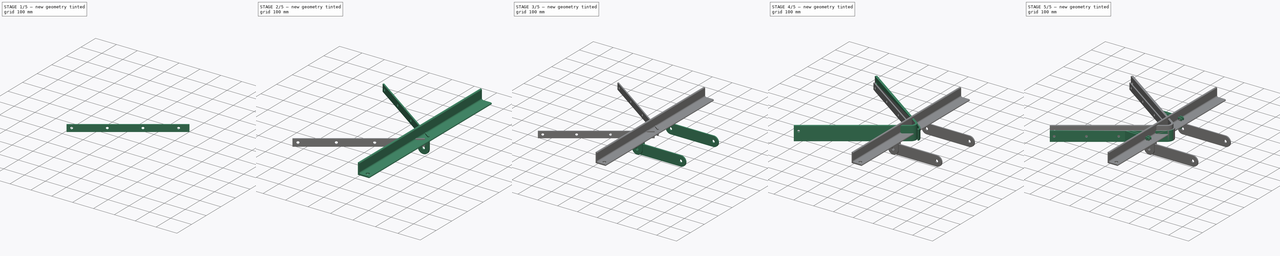
[diagram: build sequence overview — one tinted view per stage of 5, left to right]
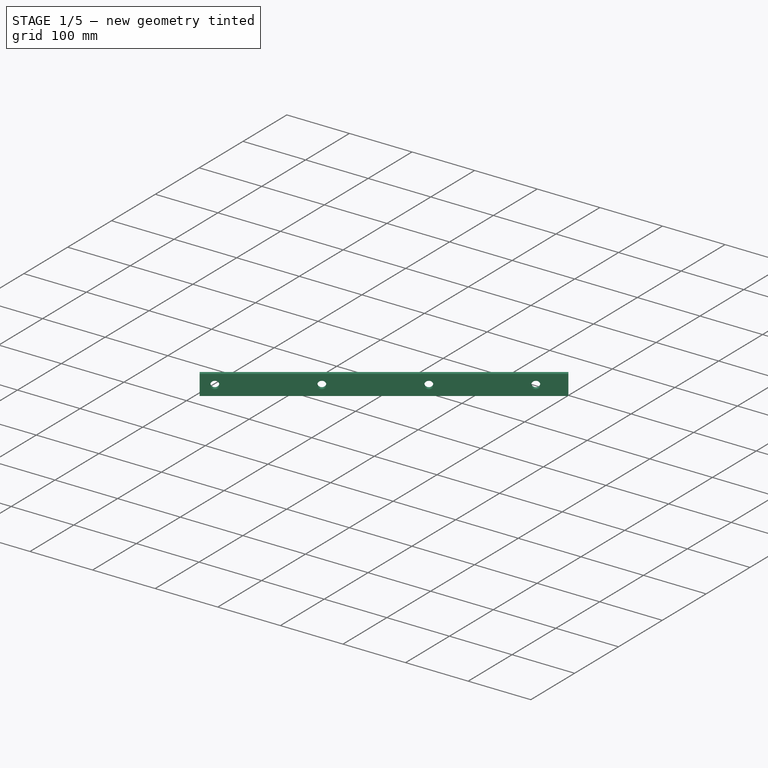
[diagram: stage 1 of 5 — iso view after this stage's code; geometry added in this stage tinted green]
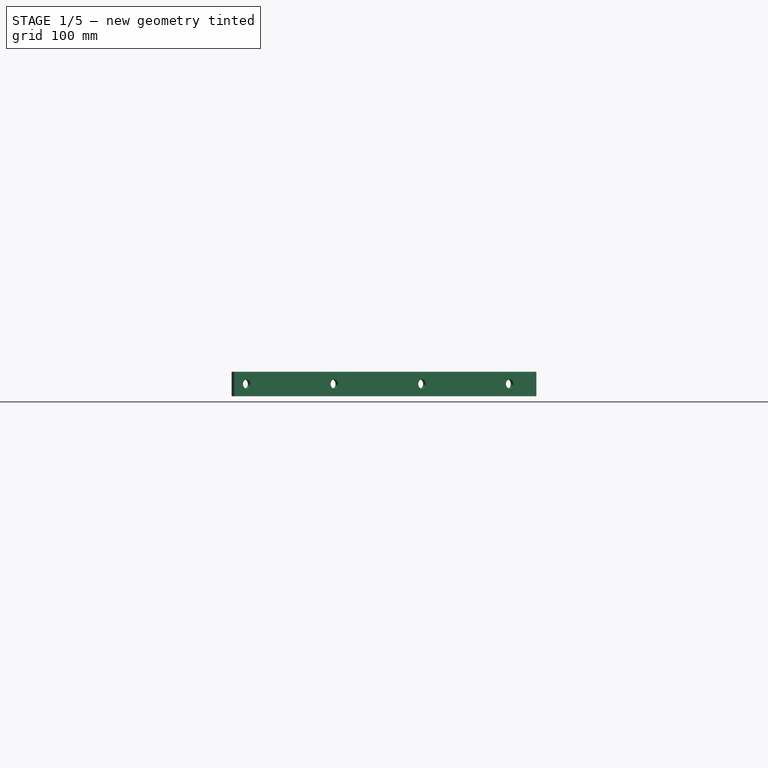
[diagram: stage 1 of 5 — front view after this stage's code; geometry added in this stage tinted green]
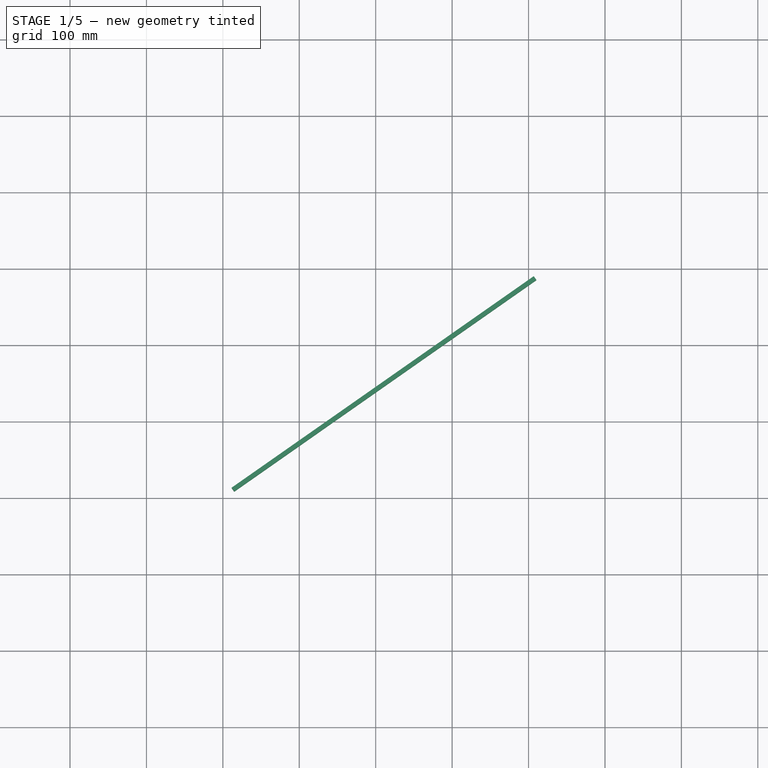
[diagram: stage 1 of 5 — top view after this stage's code; geometry added in this stage tinted green]
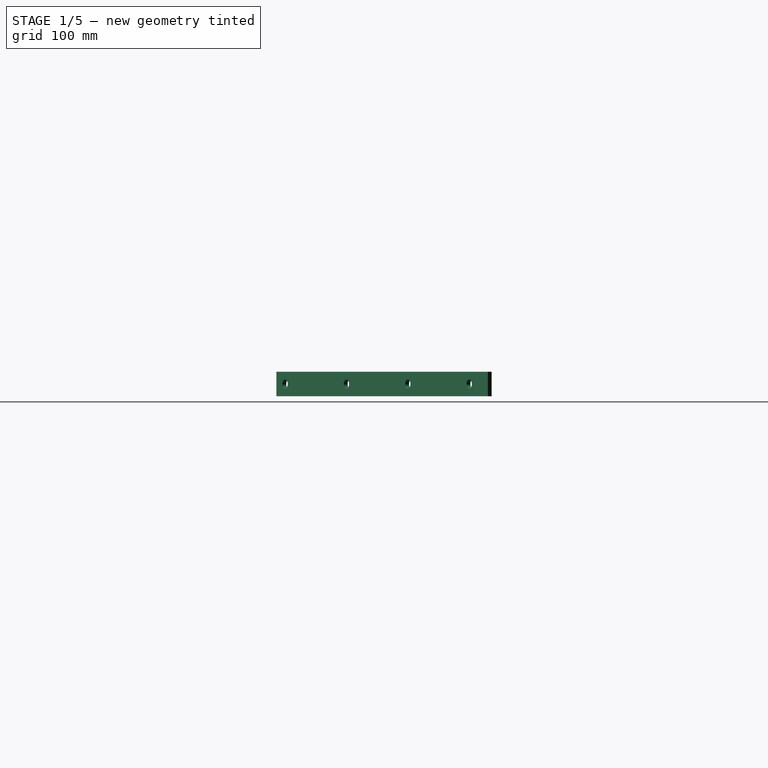
[diagram: stage 1 of 5 — right view after this stage's code; geometry added in this stage tinted green]
FCSTD DOCUMENT  (FreeCAD 1.0R39109 (Git))
Label: scraper
License: All rights reserved
objects: Sketcher::SketchObject×11, PartDesign::Pad×6, App::Part×6, PartDesign::Body×5, PartDesign::Pocket×4, PartDesign::LinearPattern×3, PartDesign::Mirrored×3, Part::FeaturePython×3, Part::Mirroring×2, Part::Compound×2, PartDesign::Chamfer×1, Part::MultiFuse×1, Part::Extrusion×1, Part::Cut×1, Spreadsheet::Sheet×1
note: 82 computed .brp shape members not serialized (recipe doc carries the construction recipe); baked Part::Feature solids carry a one-line shape summary decoded from their .brp

FEATURE [App::Part] Part005  label="suport"
  Group = -> [Clone,Body004,Compound,Clone001,Sketch012,AngleSteel,Extrude,Cut]
  Origin = -> Origin010
  Placement = pos=(175.034,0,98.5343) rot=(0,0,1;0rad)
  expr: .Placement.Base.x = 215 * cos(Spreadsheet.angle) - 27
  expr: .Placement.Base.z = 25 + 215 * sin(Spreadsheet.angle)
FEATURE [Spreadsheet::Sheet] Spreadsheet
  cells = A1='beltWidth; B1(B0)=500; A2='angle; B2(angle)=20
FEATURE [Sketcher::SketchObject] Sketch013
  ArcFitTolerance = 1e-06
  AttachmentSupport = -> [XY_Plane012]
  FullyConstrained = false
  MakeInternals = false
  MapMode = 5
  expr: Constraints[10] = 55
  expr: Constraints[13] = (Spreadsheet.B0 + 100) / 2 - 8.5
  sketch-geometry (5):
    g0: LineSegment StartX=-385.114 StartY=291.5 StartZ=0 EndX=10.2615 EndY=14.6549 EndZ=0
    g1: LineSegment StartX=10.2615 StartY=14.6549 StartZ=0 EndX=6.82002 EndY=9.74 EndZ=0
    g2: LineSegment StartX=6.82002 StartY=9.74 StartZ=0 EndX=-388.556 EndY=286.585 EndZ=0
    g3: LineSegment StartX=-388.556 StartY=286.585 StartZ=0 EndX=-385.114 EndY=291.5 EndZ=0
    g4: LineSegment [constr] StartX=0 StartY=0 StartZ=0 EndX=9.3717 EndY=13.3842 EndZ=0
  constraints (14):
    c: Coincident(g0,g1)
    c: Coincident(g1,g2)
    c: Coincident(g2,g3)
    c: Coincident(g3,g0)
    c: Perpendicular(g3,g0)
    c: Parallel(g2,g0)
    c: Distance(g3,g3) = 6
    c: Angle(g2,g-1) = 0.610865
    c: Perpendicular(g0,g1)
    c: Coincident(g4,g-1)
    c: Angle(g-1,g4) = 0.959931
    c: PointOnObject(g1,g4)
    c: DistanceY(g-1,g1) = 9.74
    c: DistanceY(g-1,g0) = 291.5
FEATURE [PartDesign::Pad] Pad006
  Direction = (0,0,1)
  Length = 32
  Length2 = 10
  Profile = -> Sketch013
  ReferenceAxis = -> Sketch013 [N_Axis]
  Refine = true
  Suppressed = false
  Type = 0
FEATURE [Sketcher::SketchObject] Sketch014
  ArcFitTolerance = 1e-06
  AttachmentSupport = -> [Pad006]
  ExternalGeometry = -> [Pad006]
  FullyConstrained = true
  MakeInternals = false
  MapMode = 5
  Placement = pos=(6.82002,9.74,0) rot=(0.913318,-0.287968,-0.287968;1.66134rad)
  sketch-geometry (1):
    g0: Circle CenterX=-462.665 CenterY=16 CenterZ=0 NormalX=0 NormalY=0 NormalZ=1 AngleXU=0 Radius=6
  constraints (3):
    c: Diameter(g0) = 12
    c: Distance(g0,g-3) = 20
    c: DistanceY(g0,g-3) = 16
FEATURE [PartDesign::Pocket] Pocket004
  BaseFeature = -> Pad006
  Direction = (0.573576,0.819152,0)
  Length = 5
  Length2 = 5
  Profile = -> Sketch014
  ReferenceAxis = -> Sketch014 [N_Axis]
  Refine = true
  Suppressed = false
  Type = 1
FEATURE [PartDesign::LinearPattern] LinearPattern002
  BaseFeature = -> Pocket004
  Direction = -> Sketch014 [H_Axis]
  Length = 420
  Mode = 0
  Occurrences = 4
  Offset = 140
  Originals = -> [Pocket004]
  Refine = true
  Suppressed = false
  TransformMode = 0
  expr: Length = Spreadsheet.B0 - 80
FEATURE [PartDesign::Mirrored] Mirrored002
  BaseFeature = -> LinearPattern002
  MirrorPlane = -> XZ_Plane012
  Refine = true
  Suppressed = false
  TransformMode = 1
FEATURE [PartDesign::Body] Body005  label="Body006"
  AllowCompound = false
  Group = -> [Sketch013,Pad006,Sketch014,Pocket004,LinearPattern002,Mirrored002]
  Origin = -> Origin012
  Placement = pos=(0,0,9) rot=(0,0,1;0rad)
  Tip = -> Mirrored002
FEATURE [App::Part] Part007  label="clampingPlate"
  Group = -> [Body005]
  Origin = -> Origin013
FEATURE [Part::Mirroring] Mirror  label="clampingPlate (mirrored)"
  Base = (-500,0,0)
  Normal = (0,-1,0)
  Source = -> Part007
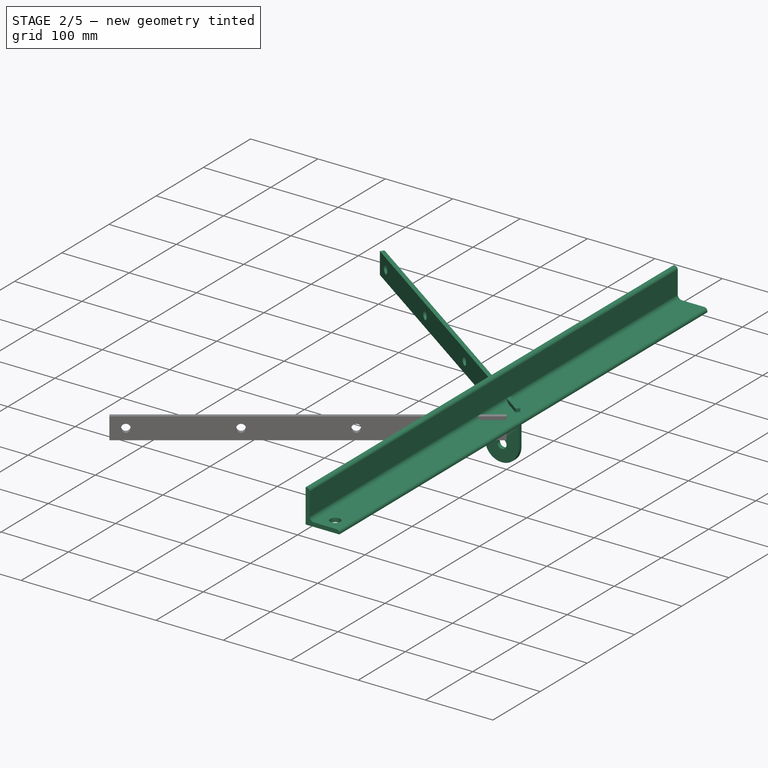
[diagram: stage 2 of 5 — iso view after this stage's code; geometry added in this stage tinted green]
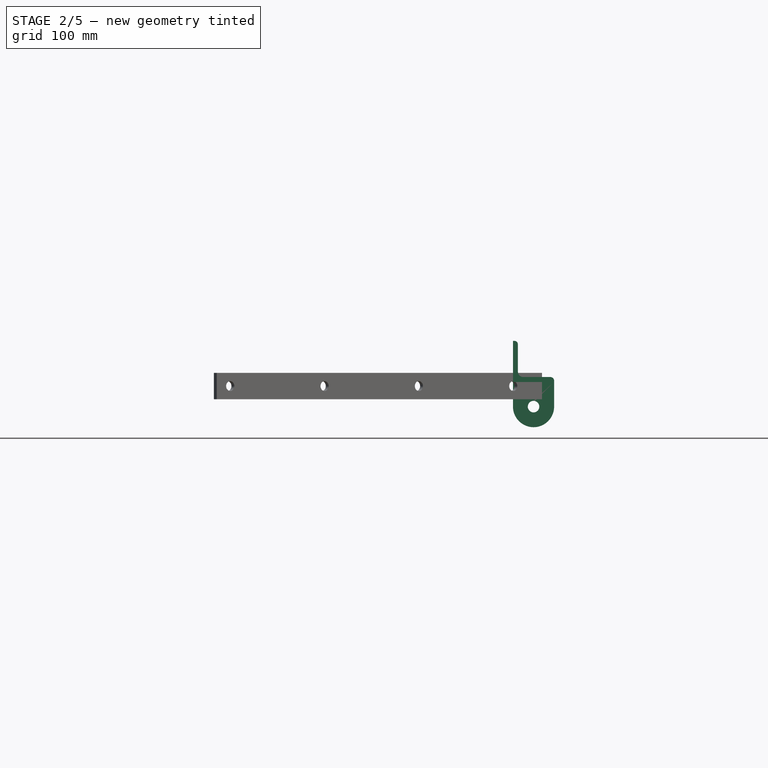
[diagram: stage 2 of 5 — front view after this stage's code; geometry added in this stage tinted green]
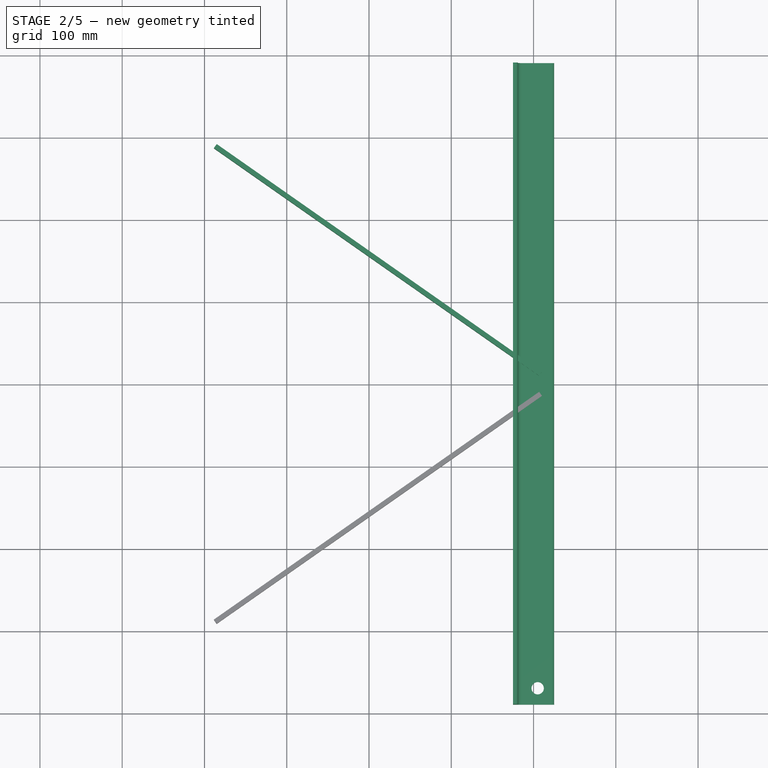
[diagram: stage 2 of 5 — top view after this stage's code; geometry added in this stage tinted green]
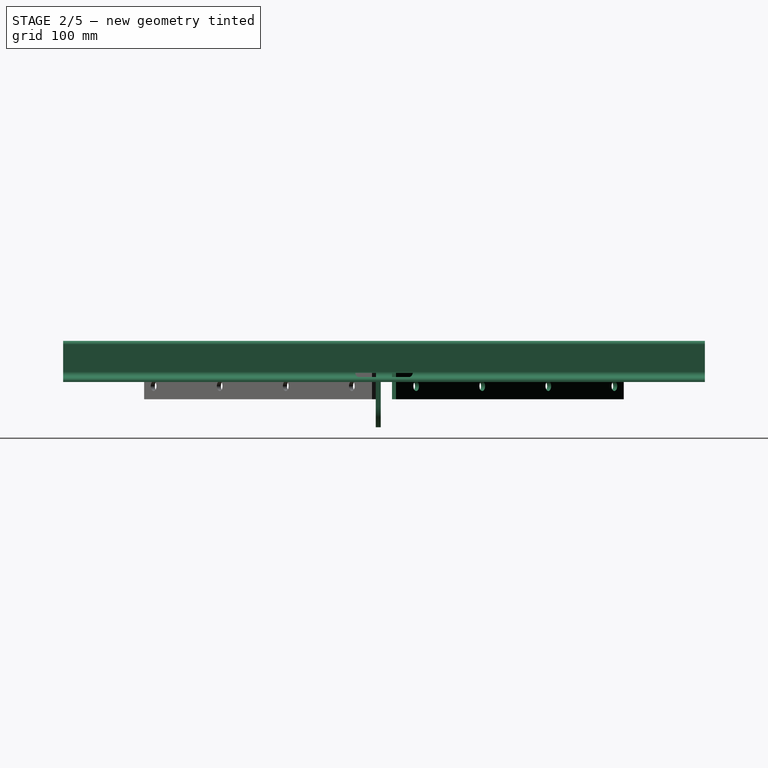
[diagram: stage 2 of 5 — right view after this stage's code; geometry added in this stage tinted green]
FEATURE [App::Part] Part004  label="LinkPlate"
  Group = -> [Mirror001,Body003,Fusion001]
  Origin = -> Origin008
  Placement = pos=(-27,0,25) rot=(0,1,0;-0.349066rad)
  expr: .Placement.Base.z = 25
  expr: .Placement.Rotation.Angle = -Spreadsheet.angle
FEATURE [Sketcher::SketchObject] Sketch011
  ArcFitTolerance = 1e-06
  AttachmentSupport = -> [XZ_Plane009]
  FullyConstrained = true
  MakeInternals = false
  MapMode = 5
  Placement = pos=(0,0,0) rot=(1,0,0;1.5708rad)
  sketch-geometry (5):
    g0: Circle CenterX=0 CenterY=0 CenterZ=0 NormalX=0 NormalY=0 NormalZ=1 AngleXU=0 Radius=7
    g1: ArcOfCircle CenterX=0 CenterY=0 CenterZ=0 NormalX=0 NormalY=0 NormalZ=1 AngleXU=0 Radius=25 StartAngle=3.14159 EndAngle=6.28319
    g2: LineSegment StartX=-25 StartY=3.1e-15 StartZ=0 EndX=-25 EndY=30 EndZ=0
    g3: LineSegment StartX=-25 StartY=30 StartZ=0 EndX=25 EndY=30 EndZ=0
    g4: LineSegment StartX=25 StartY=30 StartZ=0 EndX=25 EndY=-7.1e-15 EndZ=0
  constraints (13):
    c: Coincident(g0,g-1)
    c: Coincident(g1,g0)
    c: PointOnObject(g1,g-1)
    c: PointOnObject(g1,g-1)
    c: Tangent(g1,g2) = 1.5708
    c: Coincident(g2,g3)
    c: Horizontal(g3)
    c: Coincident(g3,g4)
    c: Coincident(g4,g1)
    c: Vertical(g4)
    c: DistanceX(g3,g3) = 50
    c: DistanceY(g-1,g2) = 30
    c: Diameter(g0) = 14
FEATURE [PartDesign::Pad] Pad005
  Direction = (0,-1,2e-16)
  Length = 6
  Length2 = 10
  Midplane = true
  Placement = pos=(0,0,0) rot=(1,0,0;1.5708rad)
  Profile = -> Sketch011
  ReferenceAxis = -> Sketch011 [N_Axis]
  Refine = true
  Suppressed = false
  Type = 0
FEATURE [PartDesign::Body] Body004
  AllowCompound = false
  Group = -> [Sketch011,Pad005]
  Origin = -> Origin009
  Placement = pos=(0,7,0) rot=(0,0,1;0rad)
  Tip = -> Pad005
FEATURE [Part::FeaturePython] Clone  label="Body005"  # Draft clone (typed FeaturePython)
  AttacherType = Attacher::AttachEngine3D
  Fuse = false
  Objects = -> [Body004]
  Placement = pos=(0,-7,0) rot=(0,0,1;0rad)
  Scale = (1,1,1)
FEATURE [Part::FeaturePython] AngleSteel  # WARN: FeaturePython — macro-defined, semantics opaque (R4)
  A = 50
  B = 50
  L = 780
  Placement = pos=(0,-390,55) rot=(1,0,0;4.71239rad)
  Solid = true
  g0 = 7.85
  mass = 3.45567
  size = 7
  standard = SS_Equal
  t = 6
  type = 00_Angle
  expr: .Placement.Base.y = -(Spreadsheet.B0 + 280) / 2
  expr: L = Spreadsheet.B0 + 280
FEATURE [Sketcher::SketchObject] Sketch012
  ArcFitTolerance = 1e-06
  AttachmentSupport = -> [AngleSteel]
  ExternalGeometry = -> [AngleSteel]
  FullyConstrained = true
  MakeInternals = false
  MapMode = 5
  Placement = pos=(0,-390,36) rot=(0,0,1;0rad)
  sketch-geometry (2):
    g0: Circle CenterX=5 CenterY=800 CenterZ=0 NormalX=0 NormalY=0 NormalZ=1 AngleXU=0 Radius=7.5
    g1: Circle CenterX=5 CenterY=20 CenterZ=0 NormalX=0 NormalY=0 NormalZ=1 AngleXU=0 Radius=7.5
  constraints (6):
    c: Diameter(g0) = 15
    c: Distance(g0,g-3) = 20
    c: Distance(g0,g-4) = 30
    c: Diameter(g1) = 15
    c: DistanceY(g-1,g1) = 20
    c: DistanceX(g-4,g1) = 30
FEATURE [Part::Extrusion] Extrude
  Base = -> Sketch012
  Dir = (0,0,1)
  DirMode = 2
  FaceMakerClass = Part::FaceMakerBullseye
  FaceMakerMode = 3
  LengthFwd = 10
  LengthRev = 0
  Reversed = true
  Solid = true
  Symmetric = false
FEATURE [Part::Cut] Cut
  Base = -> AngleSteel
  Refine = true
  Tool = -> Extrude
FEATURE [Part::Compound] Compound001  label="Compound002"
  Links = -> [Mirror,Part007]
FEATURE [App::Part] Part006  label="scraper"
  Group = -> [Part,Part001,Part004,Part005,Spreadsheet,Part007,Mirror,Compound001]
  Origin = -> Origin011
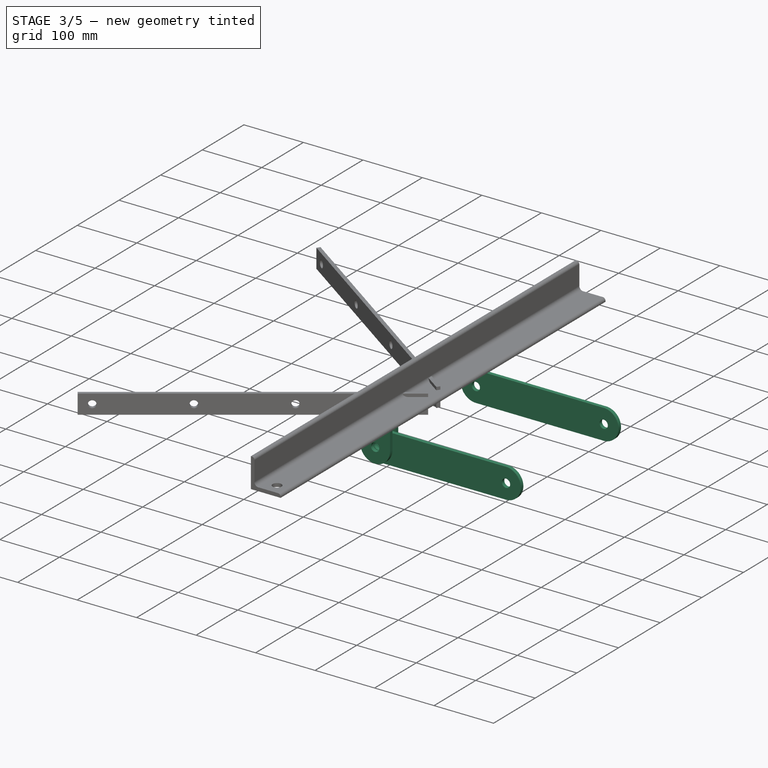
[diagram: stage 3 of 5 — iso view after this stage's code; geometry added in this stage tinted green]
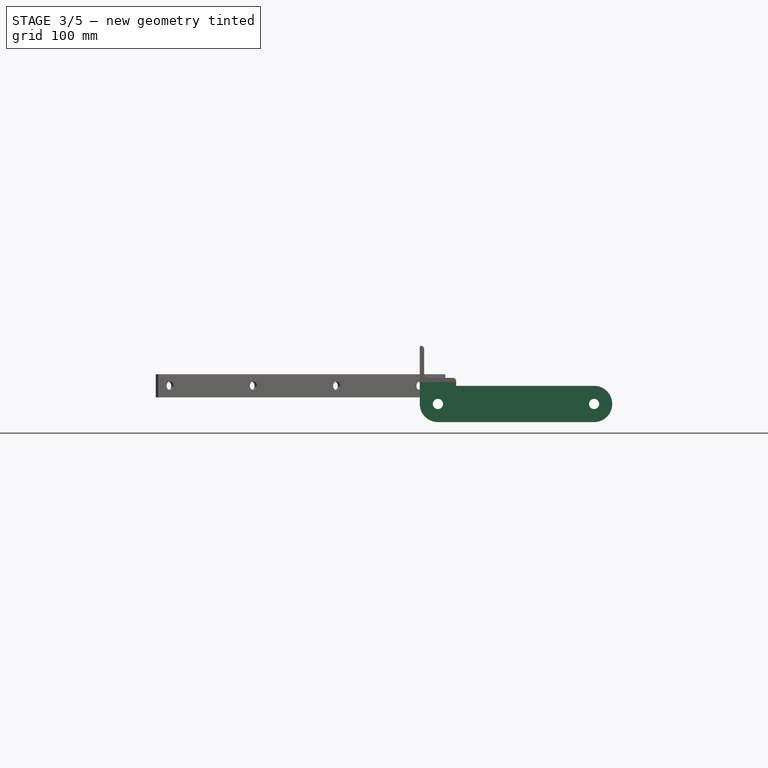
[diagram: stage 3 of 5 — front view after this stage's code; geometry added in this stage tinted green]
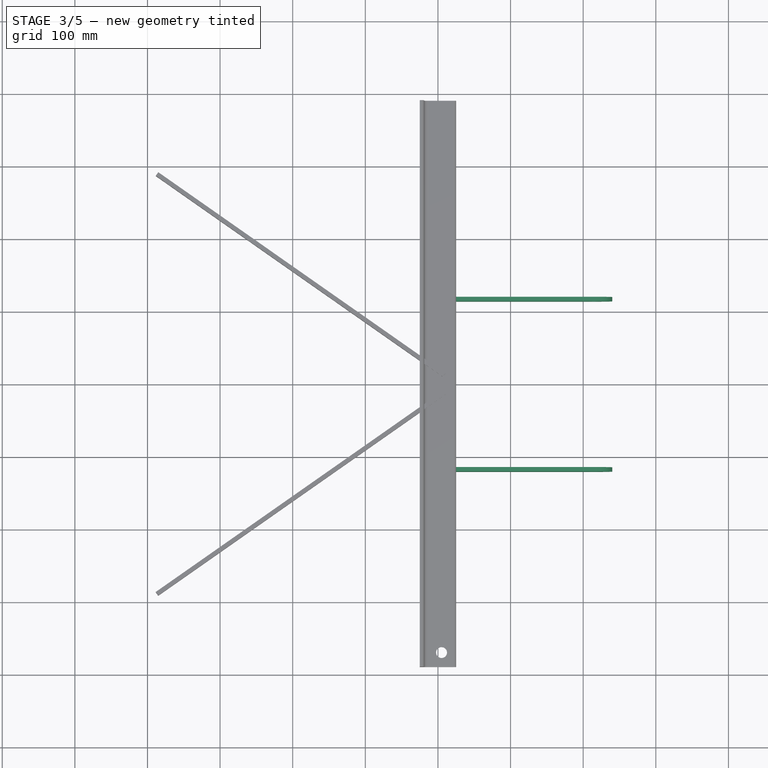
[diagram: stage 3 of 5 — top view after this stage's code; geometry added in this stage tinted green]
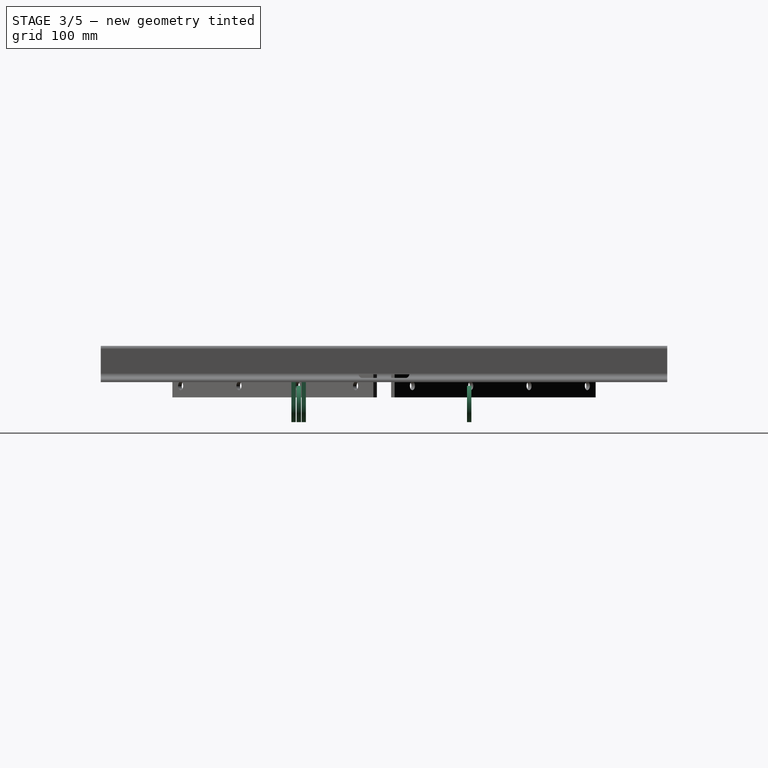
[diagram: stage 3 of 5 — right view after this stage's code; geometry added in this stage tinted green]
FEATURE [PartDesign::Body] Body001
  AllowCompound = false
  Group = -> [Sketch004,Pad002,Sketch006,Pocket002,Sketch007,Pocket003,LinearPattern001,Mirrored001]
  Origin = -> Origin002
  Placement = pos=(0,0,-20) rot=(0,0,1;0rad)
  Tip = -> Mirrored001
FEATURE [App::Part] Part001  label="rubberSheet"
  Group = -> [Body001]
  Origin = -> Origin003
FEATURE [Sketcher::SketchObject] Sketch010
  ArcFitTolerance = 1e-06
  AttachmentSupport = -> [XZ_Plane007]
  FullyConstrained = true
  MakeInternals = false
  MapMode = 5
  Placement = pos=(0,0,0) rot=(1,0,0;1.5708rad)
  sketch-geometry (6):
    g0: LineSegment StartX=-4.29e-14 StartY=25 StartZ=0 EndX=215 EndY=25 EndZ=0
    g1: ArcOfCircle CenterX=215 CenterY=0 CenterZ=0 NormalX=0 NormalY=0 NormalZ=1 AngleXU=0 Radius=25 StartAngle=4.71239 EndAngle=7.85398
    g2: LineSegment StartX=215 StartY=-25 StartZ=0 EndX=2.84e-14 EndY=-25 EndZ=0
    g3: ArcOfCircle CenterX=0 CenterY=0 CenterZ=0 NormalX=0 NormalY=0 NormalZ=1 AngleXU=0 Radius=25 StartAngle=1.5708 EndAngle=4.71239
    g4: Circle CenterX=0 CenterY=0 CenterZ=0 NormalX=0 NormalY=0 NormalZ=1 AngleXU=0 Radius=7
    g5: Circle CenterX=215 CenterY=0 CenterZ=0 NormalX=0 NormalY=0 NormalZ=1 AngleXU=0 Radius=7
  constraints (13):
    c: PointOnObject(g0,g-2)
    c: Tangent(g0,g1) = 1.5708
    c: PointOnObject(g2,g-2)
    c: Tangent(g2,g3) = 1.5708
    c: Tangent(g1,g2) = 1.5708
    c: Tangent(g3,g0) = 1.5708
    c: Coincident(g3,g-1)
    c: DistanceX(g0,g0) = 215
    c: Distance(g0,g2) = 50
    c: Coincident(g4,g3)
    c: Coincident(g5,g1)
    c: Diameter(g4) = 14
    c: Diameter(g5) = 14
FEATURE [PartDesign::Pad] Pad004
  Direction = (0,-1,2e-16)
  Length = 6
  Length2 = 10
  Placement = pos=(0,0,0) rot=(1,0,0;1.5708rad)
  Profile = -> Sketch010
  ReferenceAxis = -> Sketch010 [N_Axis]
  Refine = true
  Suppressed = false
  Type = 0
FEATURE [PartDesign::Body] Body003
  AllowCompound = false
  Group = -> [Sketch010,Pad004]
  Origin = -> Origin007
  Placement = pos=(0,-114.25,0) rot=(0,0,1;0rad)
  Tip = -> Pad004
FEATURE [Part::Mirroring] Mirror001  label="Body003 (mirrored)"
  Base = (-500,0,0)
  Normal = (0,-1,0)
  Source = -> Body003
FEATURE [Part::MultiFuse] Fusion001  label="linkPlate"
  Refine = true
  Shapes = -> [Mirror001,Body003]
FEATURE [Part::Compound] Compound
  Links = -> [Body004,Clone]
  Placement = pos=(0,117.5,0) rot=(0,0,1;0rad)
FEATURE [Part::FeaturePython] Clone001  label="Compound001"  # Draft clone (typed FeaturePython)
  AttacherType = Attacher::AttachEngine3D
  Fuse = false
  Objects = -> [Compound]
  Placement = pos=(0,-117.5,0) rot=(0,0,1;0rad)
  Scale = (1,1,1)
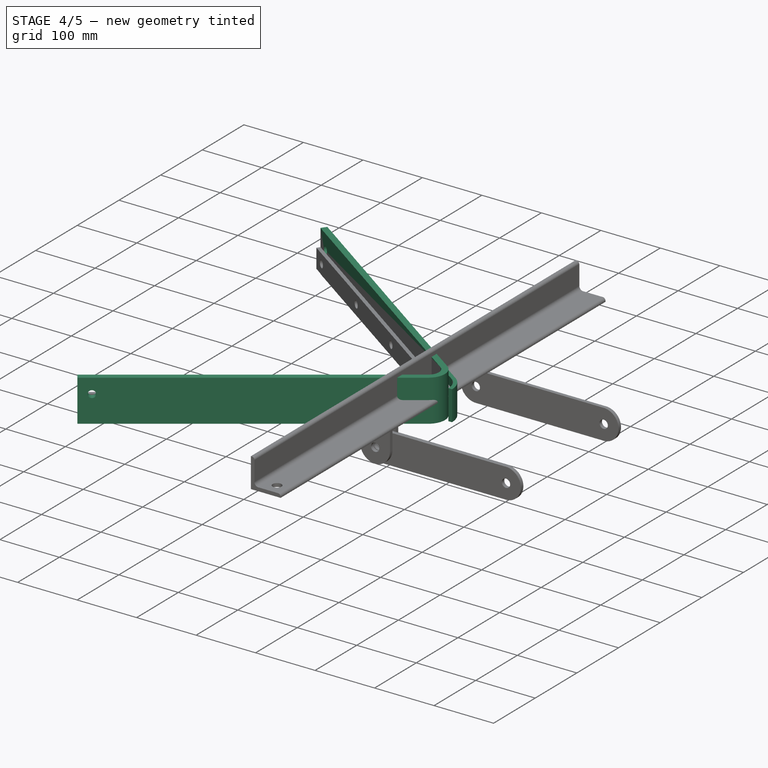
[diagram: stage 4 of 5 — iso view after this stage's code; geometry added in this stage tinted green]
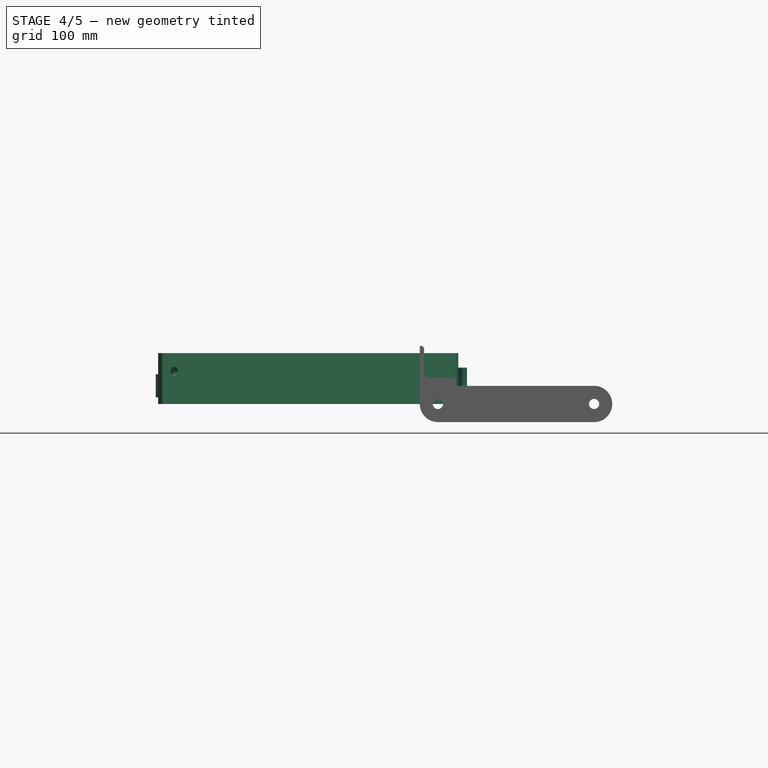
[diagram: stage 4 of 5 — front view after this stage's code; geometry added in this stage tinted green]
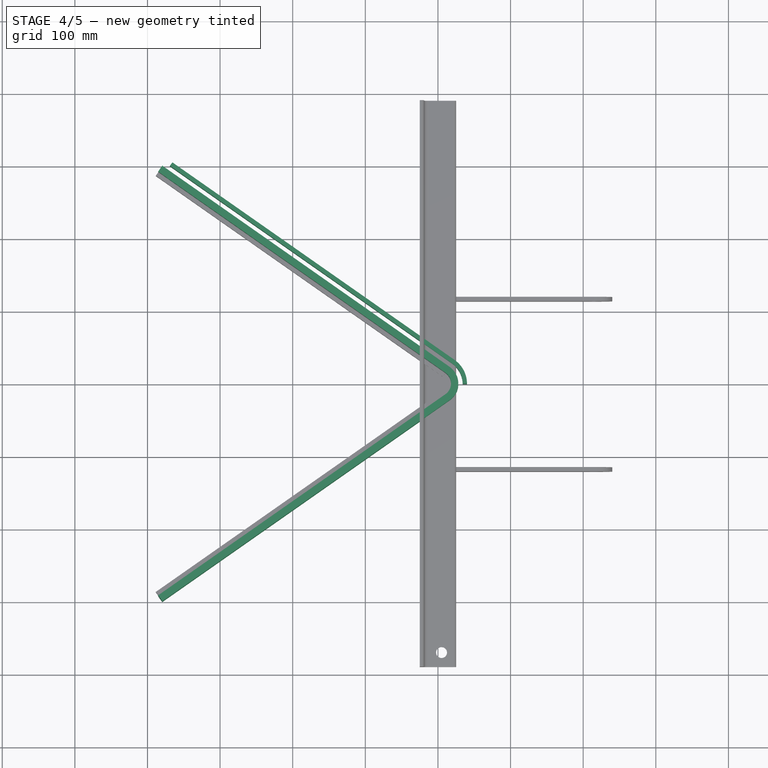
[diagram: stage 4 of 5 — top view after this stage's code; geometry added in this stage tinted green]
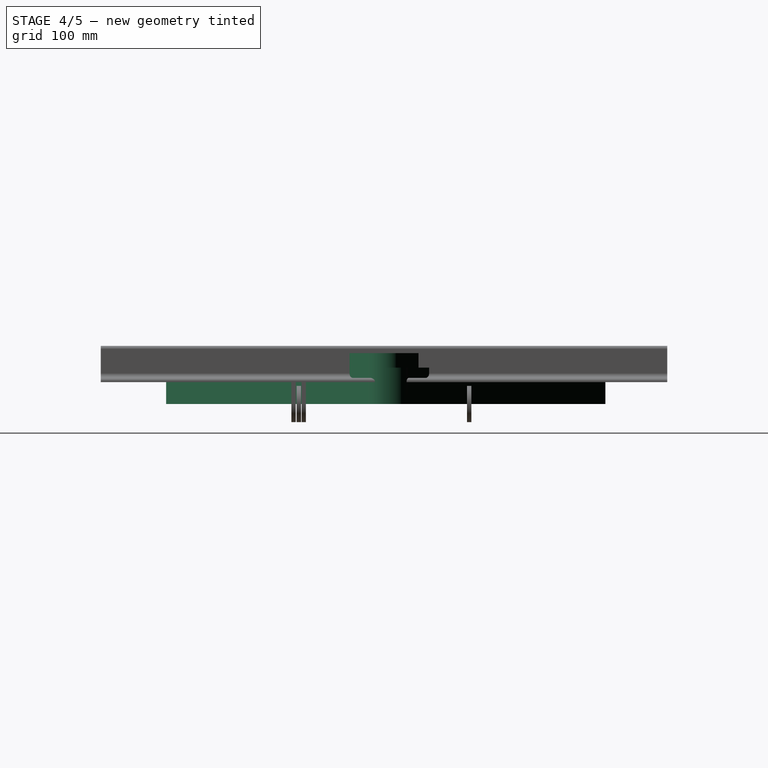
[diagram: stage 4 of 5 — right view after this stage's code; geometry added in this stage tinted green]
FEATURE [Sketcher::SketchObject] Sketch
  ArcFitTolerance = 1e-06
  AttachmentSupport = -> [XY_Plane]
  FullyConstrained = true
  MakeInternals = false
  MapMode = 5
  expr: Constraints[15] = (Spreadsheet.B0 + 100) / 2
  sketch-geometry (6):
    g0: LineSegment StartX=-369.167 StartY=300 StartZ=0 EndX=19.5016 EndY=27.8512 EndZ=0
    g1: ArcOfCircle CenterX=0 CenterY=0 CenterZ=0 NormalX=0 NormalY=0 NormalZ=1 AngleXU=0 Radius=34 StartAngle=0 EndAngle=0.959931
    g2: ArcOfCircle CenterX=0 CenterY=0 CenterZ=0 NormalX=0 NormalY=0 NormalZ=1 AngleXU=0 Radius=40 StartAngle=0 EndAngle=0.959931
    g3: LineSegment StartX=22.9431 StartY=32.7661 StartZ=0 EndX=-365.726 EndY=304.915 EndZ=0
    g4: LineSegment StartX=-365.726 StartY=304.915 StartZ=0 EndX=-369.167 EndY=300 EndZ=0
    g5: LineSegment StartX=40 StartY=0 StartZ=0 EndX=34 EndY=0 EndZ=0
  constraints (16):
    c: Tangent(g0,g1) = 1.5708
    c: Coincident(g3,g4)
    c: Coincident(g4,g0)
    c: Coincident(g2,g1)
    c: Coincident(g2,g-1)
    c: Tangent(g2,g3) = -1.5708
    c: Perpendicular(g4,g3)
    c: Parallel(g0,g3)
    c: Radius(g1) = 34
    c: Horizontal(g5)
    c: PointOnObject(g5,g-1)
    c: Coincident(g1,g5)
    c: Coincident(g2,g5)
    c: Angle(g3,g-1) = 0.610865
    c: Distance(g4,g4) = 6
    c: DistanceY(g-1,g0) = 300
FEATURE [PartDesign::Pad] Pad
  Direction = (0,0,1)
  Length = 50
  Length2 = 10
  Profile = -> Sketch
  ReferenceAxis = -> Sketch [N_Axis]
  Refine = true
  Suppressed = false
  Type = 0
FEATURE [PartDesign::Body] Body
  AllowCompound = false
  Group = -> [Sketch,Pad,Sketch001,Pad001,Chamfer,Sketch002,Pocket,LinearPattern,Mirrored]
  Origin = -> Origin
  Tip = -> Mirrored
FEATURE [App::Part] Part  label="scraperBody"
  Group = -> [Body]
  Origin = -> Origin001
FEATURE [Sketcher::SketchObject] Sketch004
  ArcFitTolerance = 1e-06
  AttachmentSupport = -> [XY_Plane002]
  FullyConstrained = true
  MakeInternals = false
  MapMode = 5
  expr: Constraints[15] = (Spreadsheet.B0 + 100) / 2
  sketch-geometry (6):
    g0: LineSegment StartX=-379.628 StartY=300 StartZ=0 EndX=16.0601 EndY=22.9363 EndZ=0
    g1: ArcOfCircle CenterX=0 CenterY=0 CenterZ=0 NormalX=0 NormalY=0 NormalZ=1 AngleXU=0 Radius=28 StartAngle=0 EndAngle=0.959931
    g2: ArcOfCircle CenterX=0 CenterY=0 CenterZ=0 NormalX=0 NormalY=0 NormalZ=1 AngleXU=0 Radius=18 StartAngle=-6.22e-14 EndAngle=0.959931
    g3: LineSegment StartX=10.3244 StartY=14.7447 StartZ=0 EndX=-385.364 EndY=291.808 EndZ=0
    g4: LineSegment StartX=-385.364 StartY=291.808 StartZ=0 EndX=-379.628 EndY=300 EndZ=0
    g5: LineSegment StartX=18 StartY=0 StartZ=0 EndX=28 EndY=0 EndZ=0
  constraints (16):
    c: Tangent(g0,g1) = 1.5708
    c: Coincident(g3,g4)
    c: Coincident(g4,g0)
    c: Coincident(g2,g1)
    c: Coincident(g2,g-1)
    c: Tangent(g2,g3) = -1.5708
    c: Perpendicular(g4,g3)
    c: Parallel(g0,g3)
    c: Horizontal(g5)
    c: PointOnObject(g5,g-1)
    c: Coincident(g1,g5)
    c: Coincident(g2,g5)
    c: Angle(g3,g-1) = 0.610865
    c: Distance(g4,g4) = 10
    c: Radius(g1) = 28
    c: DistanceY(g-1,g0) = 300
FEATURE [PartDesign::Pad] Pad002
  Direction = (0,0,1)
  Length = 70
  Length2 = 10
  Profile = -> Sketch004
  ReferenceAxis = -> Sketch004 [N_Axis]
  Refine = true
  Suppressed = false
  Type = 0
FEATURE [Sketcher::SketchObject] Sketch006
  ArcFitTolerance = 1e-06
  FullyConstrained = false
  MakeInternals = false
  MapMode = 5
  Placement = pos=(0,126.75,0) rot=(0,0.707107,0.707107;3.14159rad)
  sketch-geometry (1):
    g0: Circle CenterX=26.7406 CenterY=25.2413 CenterZ=0 NormalX=0 NormalY=0 NormalZ=1 AngleXU=0 Radius=6
  constraints (2):
    c: Diameter(g0) = 12
    c: Distance(g0,g-3) = 25
FEATURE [PartDesign::Pocket] Pocket002
  BaseFeature = -> Pad002
  Direction = (-1e-16,-1,2e-16)
  Length = 30
  Length2 = 5
  Profile = -> Sketch006
  ReferenceAxis = -> Sketch006 [N_Axis]
  Refine = true
  Suppressed = false
  Type = 0
FEATURE [Sketcher::SketchObject] Sketch007
  ArcFitTolerance = 1e-06
  AttachmentSupport = -> [Pocket002]
  ExternalGeometry = -> [Pocket002]
  FullyConstrained = true
  MakeInternals = false
  MapMode = 5
  Placement = pos=(10.3244,14.7447,0) rot=(0.913318,-0.287968,-0.287968;1.66134rad)
  sketch-geometry (1):
    g0: Circle CenterX=-463.046 CenterY=45 CenterZ=0 NormalX=0 NormalY=0 NormalZ=1 AngleXU=0 Radius=6
  constraints (3):
    c: DistanceY(g-1,g0) = 45
    c: Diameter(g0) = 12
    c: Distance(g0,g-3) = 20
FEATURE [PartDesign::Pocket] Pocket003
  BaseFeature = -> Pocket002
  Direction = (0.573576,0.819152,2e-16)
  Length = 5
  Length2 = 5
  Profile = -> Sketch007
  ReferenceAxis = -> Sketch007 [N_Axis]
  Refine = true
  Suppressed = false
  Type = 1
FEATURE [PartDesign::LinearPattern] LinearPattern001
  BaseFeature = -> Pocket003
  Direction = -> Sketch007 [H_Axis]
  Length = 420
  Mode = 0
  Occurrences = 4
  Offset = 140
  Originals = -> [Pocket003]
  Refine = true
  Reversed = true
  Suppressed = false
  TransformMode = 0
  expr: Length = Spreadsheet.B0 - 80
FEATURE [PartDesign::Mirrored] Mirrored001
  BaseFeature = -> LinearPattern001
  MirrorPlane = -> XZ_Plane002
  Refine = true
  Suppressed = false
  TransformMode = 1
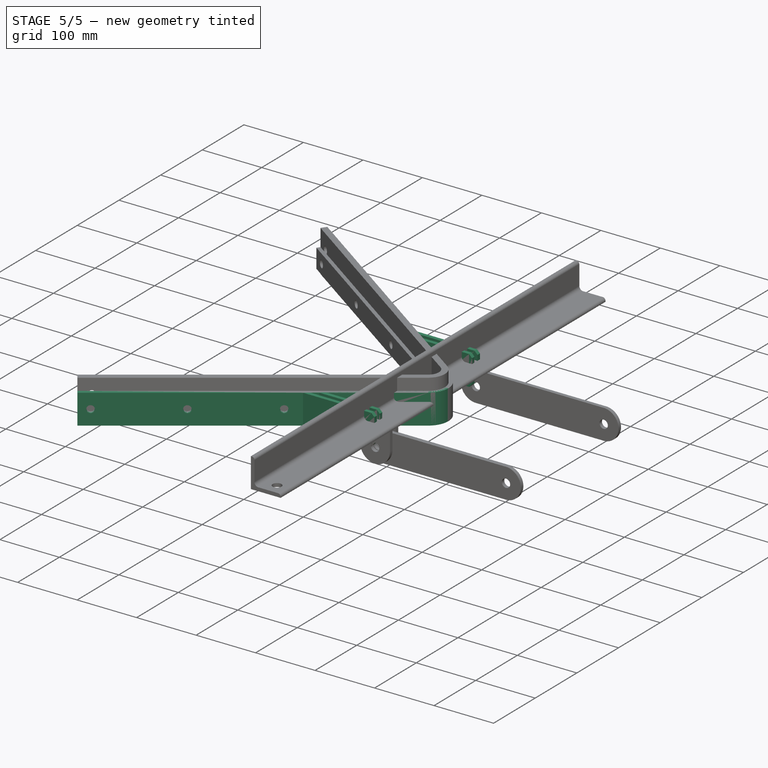
[diagram: stage 5 of 5 — iso view after this stage's code; geometry added in this stage tinted green]
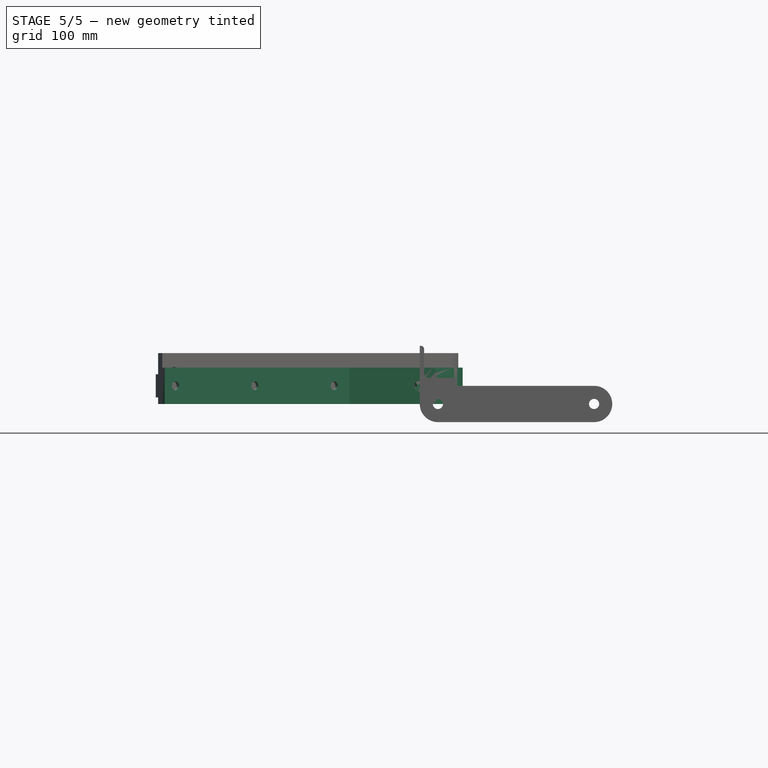
[diagram: stage 5 of 5 — front view after this stage's code; geometry added in this stage tinted green]
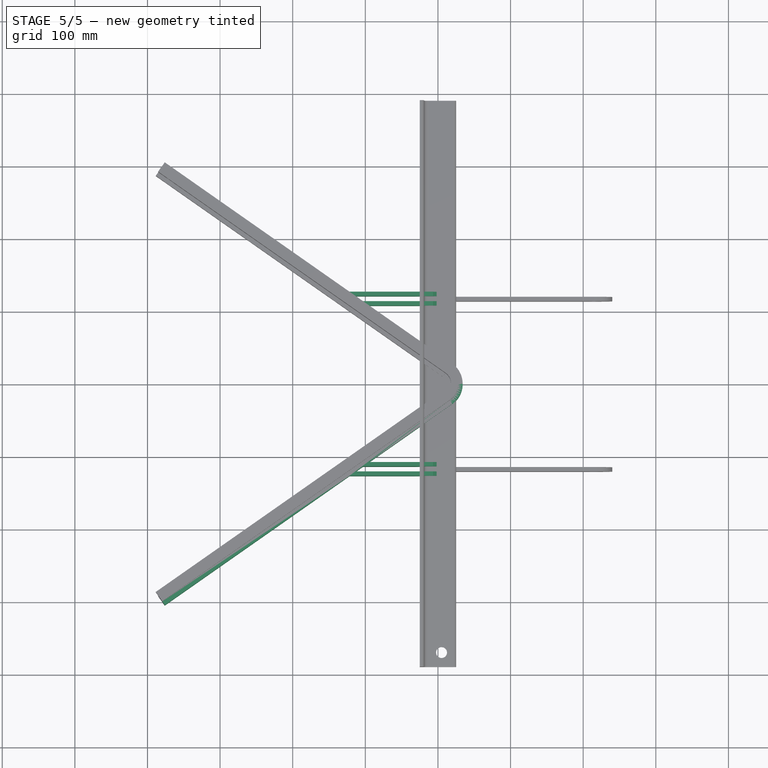
[diagram: stage 5 of 5 — top view after this stage's code; geometry added in this stage tinted green]
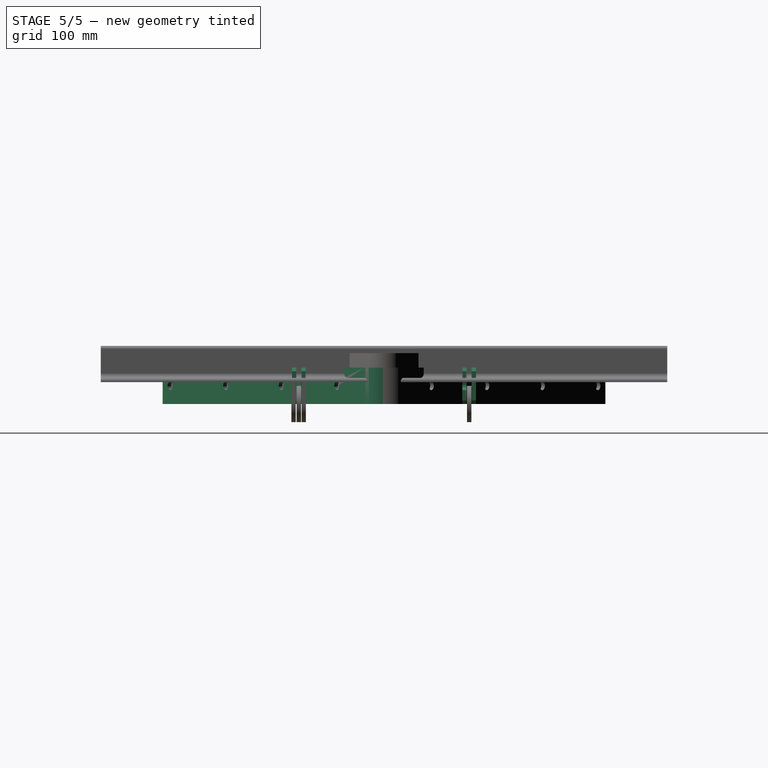
[diagram: stage 5 of 5 — right view after this stage's code; geometry added in this stage tinted green]
FEATURE [Sketcher::SketchObject] Sketch001
  ArcFitTolerance = 1e-06
  AttachmentSupport = -> [XY_Plane]
  ExternalGeometry = -> [Pad]
  FullyConstrained = false
  MakeInternals = false
  MapMode = 5
  sketch-geometry (9):
    g0: LineSegment StartX=-94.6058 StartY=107.75 StartZ=0 EndX=-103.175 EndY=113.75 EndZ=0
    g1: LineSegment StartX=-103.175 StartY=113.75 StartZ=0 EndX=-1.74057 EndY=113.75 EndZ=0
    g2: LineSegment StartX=-1.74057 StartY=113.75 StartZ=0 EndX=-1.74057 EndY=107.75 EndZ=0
    g3: LineSegment StartX=-1.74057 StartY=107.75 StartZ=0 EndX=-94.6058 EndY=107.75 EndZ=0
    g4: LineSegment StartX=-113.172 StartY=120.75 StartZ=0 EndX=-121.741 EndY=126.75 EndZ=0
    g5: LineSegment StartX=-121.741 StartY=126.75 StartZ=0 EndX=-1.74057 EndY=126.75 EndZ=0
    g6: LineSegment StartX=-1.74057 StartY=126.75 StartZ=0 EndX=-1.74057 EndY=120.75 EndZ=0
    g7: LineSegment StartX=-1.74057 StartY=120.75 StartZ=0 EndX=-113.172 EndY=120.75 EndZ=0
    g8: LineSegment [constr] StartX=-135.198 StartY=117.25 StartZ=0 EndX=130.377 EndY=117.25 EndZ=0
  constraints (26):
    c: Coincident(g0,g1)
    c: Horizontal(g1)
    c: Coincident(g1,g2)
    c: Vertical(g2)
    c: Coincident(g2,g3)
    c: Coincident(g3,g0)
    c: Horizontal(g3)
    c: Coincident(g4,g5)
    c: Horizontal(g5)
    c: Coincident(g5,g6)
    c: Vertical(g6)
    c: Coincident(g6,g7)
    c: Coincident(g7,g4)
    c: Horizontal(g7)
    c: DistanceX(g5,g5) = 120
    c: Parallel(g4,g-3)
    c: Horizontal(g8)
    c: Distance(g8,g-1) = 117.25
    c: DistanceY(g6,g6) = 6
    c: DistanceY(g2,g2) = 6
    c: Vertical(g1,g6)
    c: PointOnObject(g4,g-3)
    c: Distance(g6,g8) = 3.5
    c: PointOnObject(g0,g-3)
    c: Parallel(g0,g-3)
    c: Distance(g1,g8) = 3.5
FEATURE [PartDesign::Pad] Pad001
  BaseFeature = -> Pad
  Direction = (0,0,1)
  Length = 50
  Length2 = 10
  Profile = -> Sketch001
  ReferenceAxis = -> Sketch001 [N_Axis]
  Refine = true
  Suppressed = false
  Type = 0
FEATURE [PartDesign::Chamfer] Chamfer
  Angle = 45
  Base = -> Pad001 [Edge13,Edge32,Edge31,Edge12]
  BaseFeature = -> Pad001
  ChamferType = 0
  FlipDirection = false
  Refine = true
  Size = 5
  Size2 = 1
  SupportTransform = false
  Suppressed = false
  UseAllEdges = false
FEATURE [Sketcher::SketchObject] Sketch002
  ArcFitTolerance = 1e-06
  AttachmentSupport = -> [Chamfer]
  ExternalGeometry = -> [Chamfer]
  FullyConstrained = false
  MakeInternals = false
  MapMode = 5
  Placement = pos=(0,126.75,0) rot=(0,0.707107,0.707107;3.14159rad)
  sketch-geometry (1):
    g0: Circle CenterX=26.7406 CenterY=25.2413 CenterZ=0 NormalX=0 NormalY=0 NormalZ=1 AngleXU=0 Radius=6
  constraints (2):
    c: Diameter(g0) = 12
    c: Distance(g0,g-3) = 25
FEATURE [PartDesign::Pocket] Pocket
  BaseFeature = -> Chamfer
  Direction = (0,-1,2e-16)
  Length = 30
  Length2 = 5
  Profile = -> Sketch002
  ReferenceAxis = -> Sketch002 [N_Axis]
  Refine = true
  Suppressed = false
  Type = 0
FEATURE [PartDesign::LinearPattern] LinearPattern
  BaseFeature = -> Pocket
  Length = 400
  Mode = 0
  Occurrences = 4
  Offset = 133.333
  Refine = true
  Suppressed = false
  TransformMode = 0
  expr: Length = Spreadsheet.B0 - 100
FEATURE [PartDesign::Mirrored] Mirrored
  BaseFeature = -> LinearPattern
  MirrorPlane = -> XZ_Plane
  Refine = true
  Suppressed = false
  TransformMode = 1
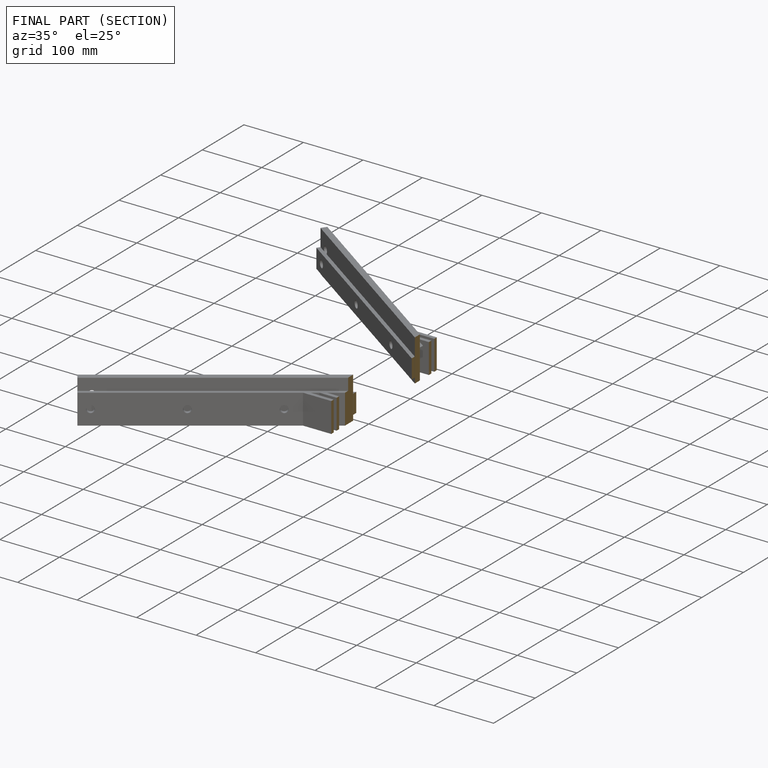
[diagram: finished part — half-section view (interior)]
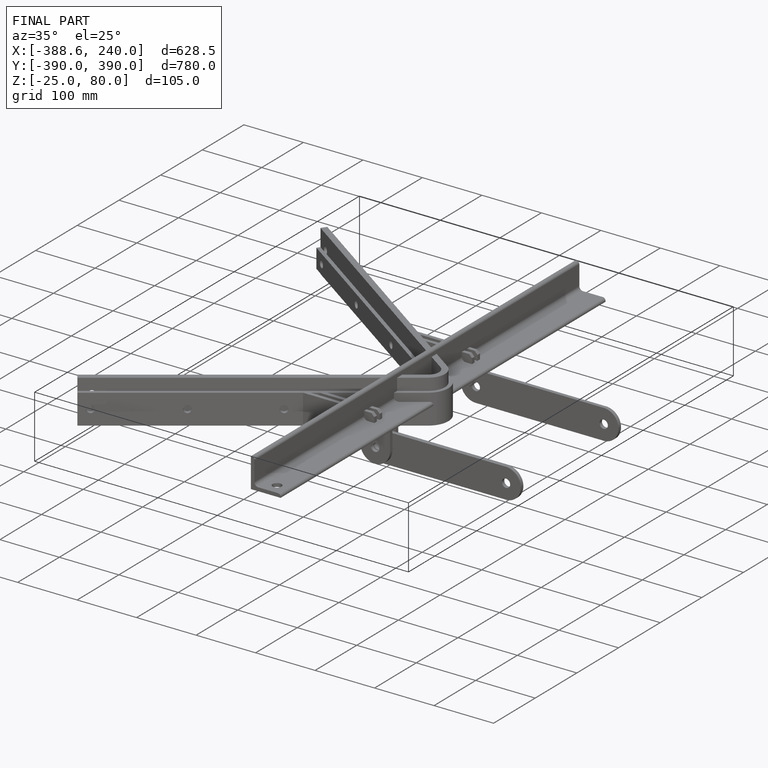
[diagram: finished part — iso view with bounding-box wireframe]
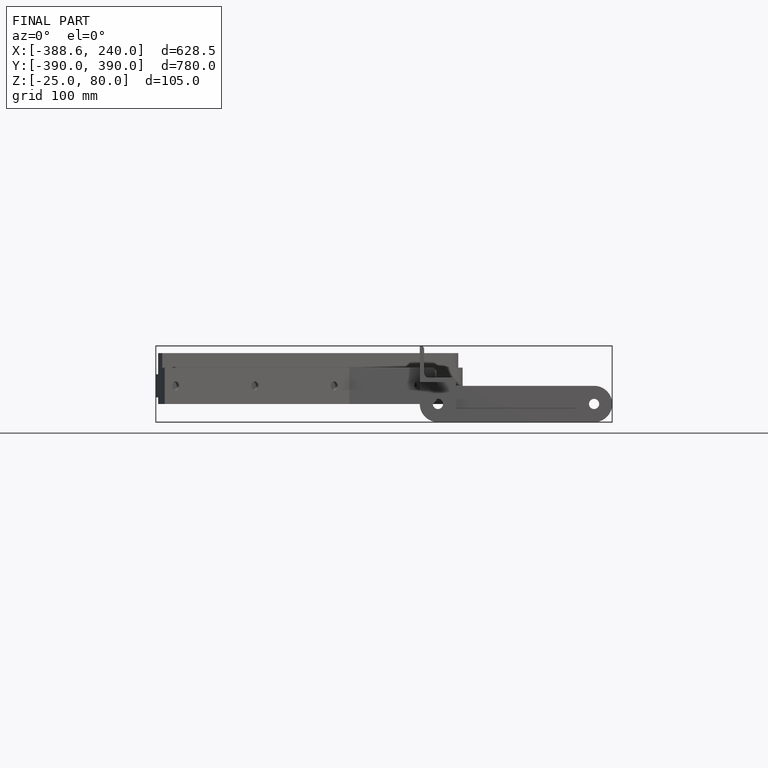
[diagram: finished part — front view with bounding-box wireframe]
